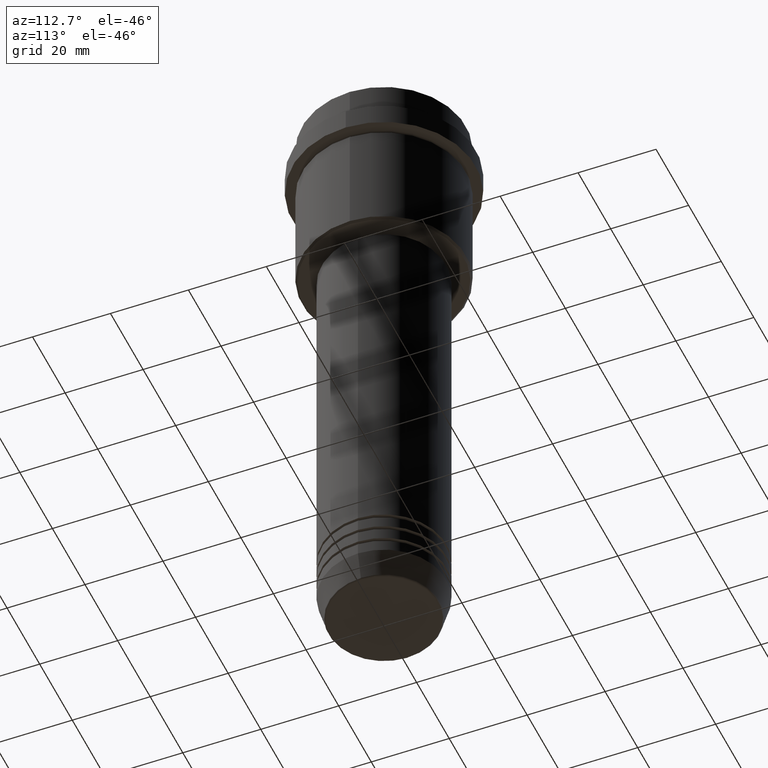
[diagram: clean part render]
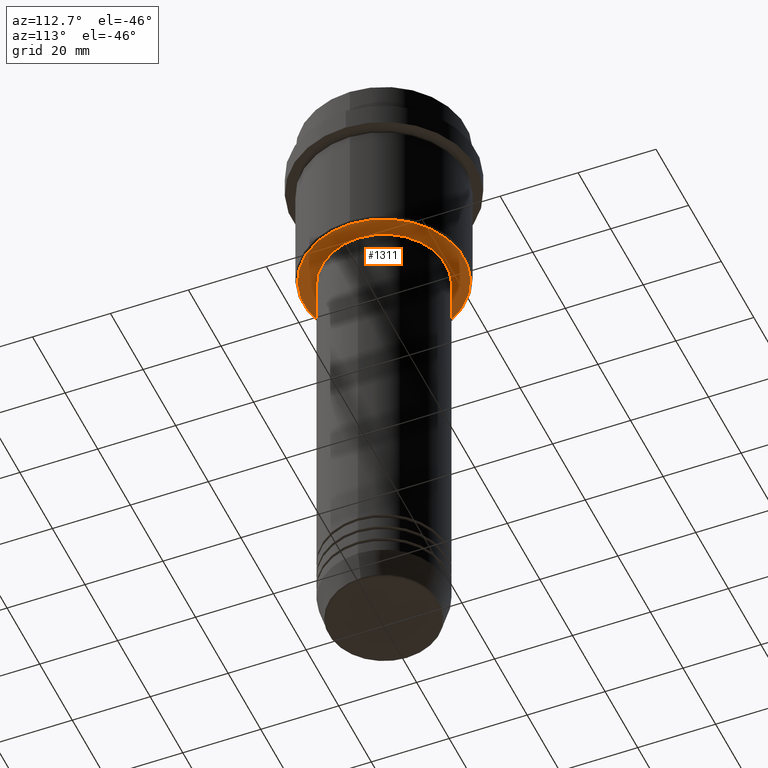
[diagram: same view with one face highlighted and labeled with its STEP entity id]
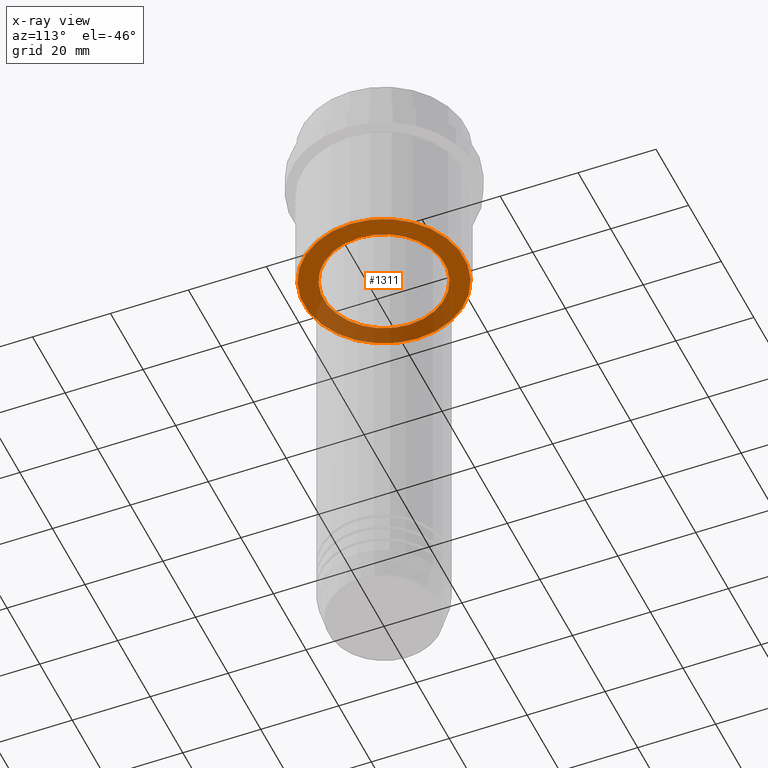
[diagram: x-ray of the same camera — body ghosted, the highlighted face saturated]
A machine part, auxiliary view. The second image highlights one B-rep face of the part: STEP entity #1311.
The next image is the same camera in x-ray: the body ghosted, the highlighted face saturated — about 33% of this face is hidden behind the body in this view.
In plain terms, the highlighted planar face has unit normal (0, 0, -1).
Its self-contained STEP definition (entity closure, byte-faithful):
#11 = CARTESIAN_POINT ( 'NONE',  ( 0.000000000000000000, 0.000000000000000000, -44.99999999999998579 ) ) ;
#17 = DIRECTION ( 'NONE',  ( -0.000000000000000000, -0.000000000000000000, 1.000000000000000000 ) ) ;
#79 = CIRCLE ( 'NONE', #1076, 20.50000000000003197 ) ;
#85 = EDGE_CURVE ( 'NONE', #827, #995, #958, .T. ) ;
#118 = AXIS2_PLACEMENT_3D ( 'NONE', #11, #17, #1221 ) ;
#194 = DIRECTION ( 'NONE',  ( 0.000000000000000000, 0.000000000000000000, -1.000000000000000000 ) ) ;
#208 = FACE_OUTER_BOUND ( 'NONE', #283, .T. ) ;
#231 = DIRECTION ( 'NONE',  ( -1.000000000000000000, 0.000000000000000000, -0.000000000000000000 ) ) ;
#273 = DIRECTION ( 'NONE',  ( 1.000000000000000000, 0.000000000000000000, 0.000000000000000000 ) ) ;
#283 = EDGE_LOOP ( 'NONE', ( #491, #315 ) ) ;
#315 = ORIENTED_EDGE ( 'NONE', *, *, #474, .T. ) ;
#319 = CARTESIAN_POINT ( 'NONE',  ( 20.50000000000003197, 0.000000000000000000, -44.99999999999998579 ) ) ;
#361 = CARTESIAN_POINT ( 'NONE',  ( 0.000000000000000000, 21.00000000000000000, -44.99999999999998579 ) ) ;
#467 = AXIS2_PLACEMENT_3D ( 'NONE', #1353, #1069, #273 ) ;
#474 = EDGE_CURVE ( 'NONE', #877, #757, #672, .T. ) ;
#476 = CARTESIAN_POINT ( 'NONE',  ( 15.49999999999999645, 0.000000000000000000, -44.99999999999998579 ) ) ;
#491 = ORIENTED_EDGE ( 'NONE', *, *, #1301, .T. ) ;
#672 = CIRCLE ( 'NONE', #1202, 20.50000000000003197 ) ;
#677 = CARTESIAN_POINT ( 'NONE',  ( -15.49999999999999645, 1.898202538678397163E-15, -44.99999999999998579 ) ) ;
#751 = CARTESIAN_POINT ( 'NONE',  ( 0.000000000000000000, 0.000000000000000000, -44.99999999999998579 ) ) ;
#753 = ORIENTED_EDGE ( 'NONE', *, *, #85, .T. ) ;
#757 = VERTEX_POINT ( 'NONE', #319 ) ;
#780 = DIRECTION ( 'NONE',  ( -1.000000000000000000, 0.000000000000000000, 0.000000000000000000 ) ) ;
#790 = FACE_BOUND ( 'NONE', #1055, .T. ) ;
#827 = VERTEX_POINT ( 'NONE', #677 ) ;
#832 = AXIS2_PLACEMENT_3D ( 'NONE', #361, #1110, #231 ) ;
#877 = VERTEX_POINT ( 'NONE', #1365 ) ;
#878 = PLANE ( 'NONE',  #832 ) ;
#889 = DIRECTION ( 'NONE',  ( 0.000000000000000000, 0.000000000000000000, -1.000000000000000000 ) ) ;
#958 = CIRCLE ( 'NONE', #467, 15.49999999999999645 ) ;
#967 = EDGE_CURVE ( 'NONE', #995, #827, #1029, .T. ) ;
#995 = VERTEX_POINT ( 'NONE', #476 ) ;
#1029 = CIRCLE ( 'NONE', #118, 15.49999999999999645 ) ;
#1055 = EDGE_LOOP ( 'NONE', ( #1165, #753 ) ) ;
#1069 = DIRECTION ( 'NONE',  ( -0.000000000000000000, -0.000000000000000000, 1.000000000000000000 ) ) ;
#1076 = AXIS2_PLACEMENT_3D ( 'NONE', #1417, #889, #1398 ) ;
#1110 = DIRECTION ( 'NONE',  ( 0.000000000000000000, 0.000000000000000000, -1.000000000000000000 ) ) ;
#1165 = ORIENTED_EDGE ( 'NONE', *, *, #967, .T. ) ;
#1202 = AXIS2_PLACEMENT_3D ( 'NONE', #751, #194, #780 ) ;
#1221 = DIRECTION ( 'NONE',  ( 1.000000000000000000, 0.000000000000000000, 0.000000000000000000 ) ) ;
#1301 = EDGE_CURVE ( 'NONE', #757, #877, #79, .T. ) ;
#1311 = ADVANCED_FACE ( 'NONE', ( #208, #790 ), #878, .T. ) ;
#1353 = CARTESIAN_POINT ( 'NONE',  ( 0.000000000000000000, 0.000000000000000000, -44.99999999999998579 ) ) ;
#1365 = CARTESIAN_POINT ( 'NONE',  ( -20.50000000000003197, 2.541142108230759846E-15, -44.99999999999998579 ) ) ;
#1398 = DIRECTION ( 'NONE',  ( -1.000000000000000000, 0.000000000000000000, 0.000000000000000000 ) ) ;
#1417 = CARTESIAN_POINT ( 'NONE',  ( 0.000000000000000000, 0.000000000000000000, -44.99999999999998579 ) ) ;